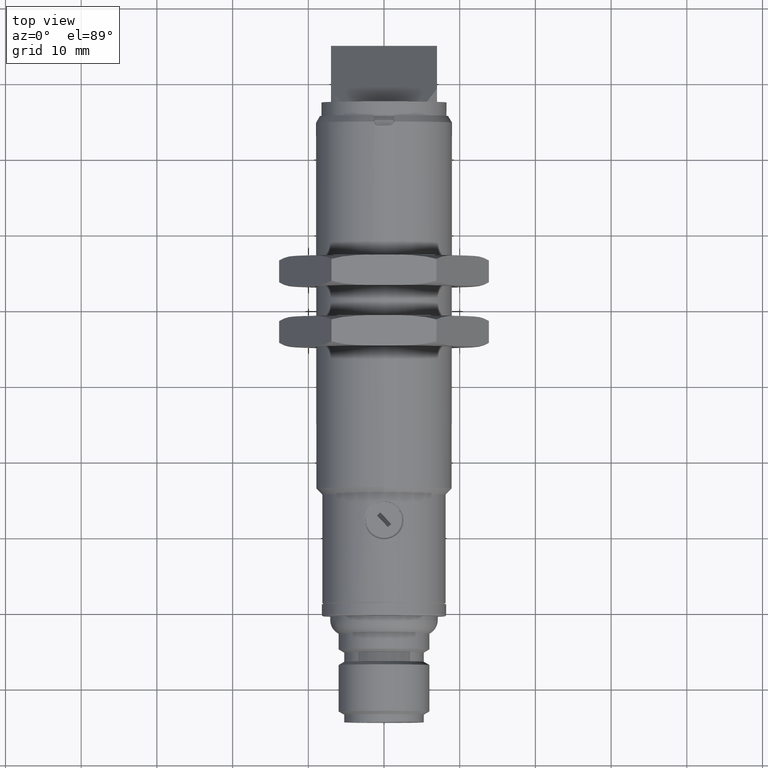
[diagram: clean part render]
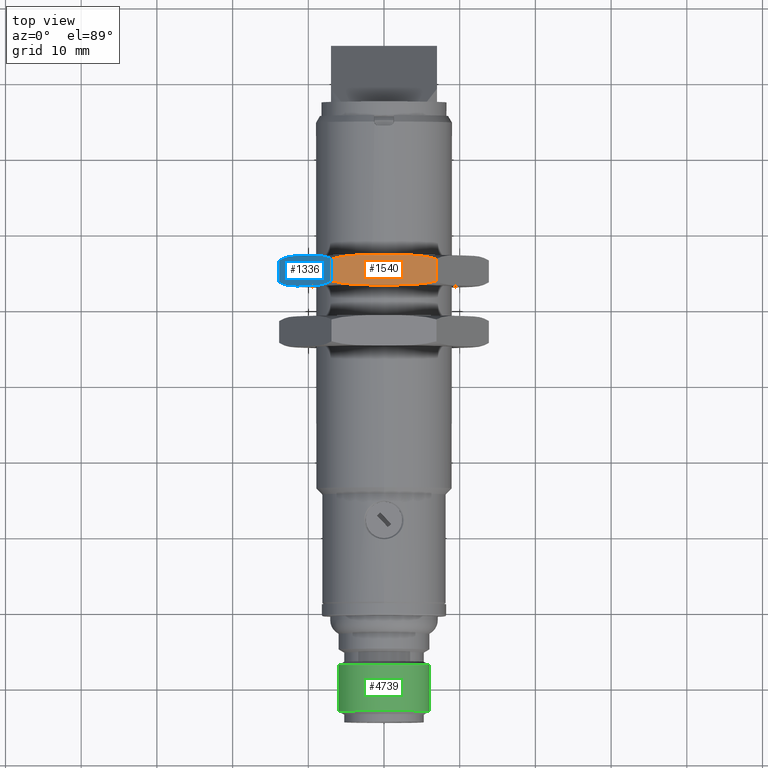
[diagram: same view with three faces highlighted in distinct colors, each labeled with its STEP entity id]
A machine part, top view with three faces highlighted in distinct colors.
Their STEP definitions:

[orange] entity #1540 — the highlighted planar face has unit normal (0, 0, -1).
#26 = CARTESIAN_POINT ( 'NONE',  ( -0.2091848011551339370, 0.5235346787460055662, 0.4724408906840904532 ) ) ;
#31 = VERTEX_POINT ( 'NONE', #1901 ) ;
#68 = B_SPLINE_CURVE_WITH_KNOTS ( 'NONE', 3,
 ( #1308, #2995, #4676, #3842, #895, #2580, #4257, #2167, #3427, #5122, #4642, #2571, #3394, #4218, #4247, #3805, #5112, #5062, #1300, #2959, #5085, #886, #856 ),
 .UNSPECIFIED., .F., .F.,
 ( 4, 2, 2, 1, 2, 2, 2, 2, 2, 2, 2, 4 ),
 ( 0.000000000000000000, 0.1250000000000014433, 0.1875000000000021649, 0.2187500000000023315, 0.2343750000000021927, 0.2500000000000020539, 0.3750000000000019984, 0.4375000000000016653, 0.4687500000000016098, 0.5000000000000015543, 0.7500000000000008882, 1.000000000000000000 ),
 .UNSPECIFIED. ) ;
#287 = ORIENTED_EDGE ( 'NONE', *, *, #2804, .F. ) ;
#372 = CARTESIAN_POINT ( 'NONE',  ( 0.1990362944284284896, 0.6665554601562885262, 0.4724396099491468548 ) ) ;
#383 = CARTESIAN_POINT ( 'NONE',  ( -0.1293281229919895636, 0.5169781697918028884, 0.4724387467221207171 ) ) ;
#399 = CARTESIAN_POINT ( 'NONE',  ( 0.2330192571565266046, 0.6617065964424819757, 0.4724408450086383104 ) ) ;
#424 = EDGE_CURVE ( 'NONE', #714, #1895, #4949, .T. ) ;
#426 = CARTESIAN_POINT ( 'NONE',  ( 0.1708411760996204898, 0.6694618231276583398, 0.4724378416148976023 ) ) ;
#470 = CARTESIAN_POINT ( 'NONE',  ( -0.1708411761039722310, 0.5192795187504218868, 0.4724378416150332716 ) ) ;
#496 = CARTESIAN_POINT ( 'NONE',  ( -0.2066529976302912963, 0.5231811942670836491, 0.4724406848995783004 ) ) ;
#570 = ORIENTED_EDGE ( 'NONE', *, *, #1596, .F. ) ;
#593 = EDGE_CURVE ( 'NONE', #4885, #2611, #4717, .T. ) ;
#594 = LINE ( 'NONE', #4853, #2495 ) ;
#621 = ORIENTED_EDGE ( 'NONE', *, *, #3126, .T. ) ;
#628 = CARTESIAN_POINT ( 'NONE',  ( 0.04645346502427662866, 0.6730862702828028787, 0.4724409448818893686 ) ) ;
#639 = CARTESIAN_POINT ( 'NONE',  ( -0.2727639067037606613, 0.6731108284191653635, 0.4724409448818898127 ) ) ;
#714 = VERTEX_POINT ( 'NONE', #3213 ) ;
#807 = VECTOR ( 'NONE', #1233, 39.37007874015748143 ) ;
#815 = CARTESIAN_POINT ( 'NONE',  ( 0.2727639067037606613, 0.6512148107232283989, 0.4724409448818898127 ) ) ;
#817 = CARTESIAN_POINT ( 'NONE',  ( 0.1632808797370268183, 0.5187803498524760082, 0.4724395993777079639 ) ) ;
#833 = EDGE_CURVE ( 'NONE', #1837, #4885, #68, .T. ) ;
#856 = CARTESIAN_POINT ( 'NONE',  ( -0.02567950825658082623, 0.6731108284191653635, 0.4724409448818898127 ) ) ;
#879 = CARTESIAN_POINT ( 'NONE',  ( -0.1241639488644155215, 0.5167967924526691847, 0.4724382398507110392 ) ) ;
#886 = CARTESIAN_POINT ( 'NONE',  ( -0.04646973941657321638, 0.6730862510438706536, 0.4724409448818895352 ) ) ;
#895 = CARTESIAN_POINT ( 'NONE',  ( -0.2330594514840700904, 0.6612425960756438403, 0.4724382843729626469 ) ) ;
#932 = CARTESIAN_POINT ( 'NONE',  ( -0.1990362944313719407, 0.5221858817217481796, 0.4724396099490421608 ) ) ;
#1016 = VERTEX_POINT ( 'NONE', #4942 ) ;
#1025 = CARTESIAN_POINT ( 'NONE',  ( 0.02567950825658082623, 0.5156305134585361660, 0.4724409448818898127 ) ) ;
#1042 = CARTESIAN_POINT ( 'NONE',  ( 0.02567950825658082623, 0.6731108284191653635, 0.4724409448818898127 ) ) ;
#1069 = VECTOR ( 'NONE', #4294, 39.37007874015748143 ) ;
#1120 = DIRECTION ( 'NONE',  ( 0.000000000000000000, -1.000000000000000000, 0.000000000000000000 ) ) ;
#1128 = CARTESIAN_POINT ( 'NONE',  ( 0.1554226949849122630, 0.5182610845015797052, 0.4724407071759577637 ) ) ;
#1154 = CARTESIAN_POINT ( 'NONE',  ( 0.1763008074031270911, 0.5197923830726198791, 0.4724378012827494810 ) ) ;
#1180 = CARTESIAN_POINT ( 'NONE',  ( 0.1604643549085116305, 0.6702096986703052206, 0.4724409003933649487 ) ) ;
#1197 = ORIENTED_EDGE ( 'NONE', *, *, #833, .F. ) ;
#1207 = CARTESIAN_POINT ( 'NONE',  ( 0.2066529976289322446, 0.6655601476107830816, 0.4724406848996517416 ) ) ;
#1232 = CARTESIAN_POINT ( 'NONE',  ( 0.2214053349024480422, 0.5254109070155068562, 0.4724402044284559121 ) ) ;
#1233 = DIRECTION ( 'NONE',  ( 0.000000000000000000, -1.000000000000000000, 0.000000000000000000 ) ) ;
#1261 = VECTOR ( 'NONE', #3165, 39.37007874015748143 ) ;
#1270 = CARTESIAN_POINT ( 'NONE',  ( -0.06709584475199302511, 0.5157034660448385210, 0.4724410302519692628 ) ) ;
#1300 = CARTESIAN_POINT ( 'NONE',  ( -0.1294572635618168044, 0.6719487739377050239, 0.4724408552733971867 ) ) ;
#1308 = CARTESIAN_POINT ( 'NONE',  ( -0.2727639067037606613, 0.6512148107232283989, 0.4724409448818898127 ) ) ;
#1348 = CARTESIAN_POINT ( 'NONE',  ( -0.2330192571588157180, 0.5270347454356897332, 0.4724408450090430422 ) ) ;
#1377 = FACE_OUTER_BOUND ( 'NONE', #5295, .T. ) ;
#1540 = ADVANCED_FACE ( 'NONE', ( #1377 ), #5256, .F. ) ;
#1560 = CARTESIAN_POINT ( 'NONE',  ( 0.09830553385879511885, 0.6726118710566963976, 0.4724409021968058453 ) ) ;
#1589 = CARTESIAN_POINT ( 'NONE',  ( 0.2134785542342753084, 0.5241628188742354366, 0.4724409509406384822 ) ) ;
#1596 = EDGE_CURVE ( 'NONE', #2491, #714, #4125, .T. ) ;
#1620 = CARTESIAN_POINT ( 'NONE',  ( 0.2727639067037606613, 0.6731108284191653635, 0.4724409448818898127 ) ) ;
#1761 = DIRECTION ( 'NONE',  ( 0.000000000000000000, -1.000000000000000000, 0.000000000000000000 ) ) ;
#1837 = VERTEX_POINT ( 'NONE', #5010 ) ;
#1895 = VERTEX_POINT ( 'NONE', #1025 ) ;
#1901 = CARTESIAN_POINT ( 'NONE',  ( -0.2727639067037602172, 0.5375265311544740188, 0.4724409448818898127 ) ) ;
#1951 = AXIS2_PLACEMENT_3D ( 'NONE', #639, #3857, #1761 ) ;
#1983 = CARTESIAN_POINT ( 'NONE',  ( 0.1918098235636890581, 0.5212642084282440580, 0.4724377470953523006 ) ) ;
#2067 = CARTESIAN_POINT ( 'NONE',  ( -0.2727639067037602172, 0.5375265311544740188, 0.4724409448818898127 ) ) ;
#2073 = ORIENTED_EDGE ( 'NONE', *, *, #3144, .T. ) ;
#2092 = CARTESIAN_POINT ( 'NONE',  ( -0.1447435290423597365, 0.5176518222579122863, 0.4724409671260375587 ) ) ;
#2109 = CARTESIAN_POINT ( 'NONE',  ( 0.1396552881079065334, 0.6713335666281557979, 0.4724401085877822370 ) ) ;
#2150 = CARTESIAN_POINT ( 'NONE',  ( -0.1862699493274133367, 0.5207359911166437039, 0.4724378574288715105 ) ) ;
#2167 = CARTESIAN_POINT ( 'NONE',  ( -0.2174746463094093807, 0.6639603983447495139, 0.4724406695293444369 ) ) ;
#2232 = CARTESIAN_POINT ( 'NONE',  ( -0.2727639067037606613, 0.6731108284191653635, 0.4724409448818898127 ) ) ;
#2387 = LINE ( 'NONE', #2715, #1261 ) ;
#2448 = CARTESIAN_POINT ( 'NONE',  ( 0.2727639067037609943, 0.5375265311544740188, 0.4724409448818898127 ) ) ;
#2491 = VERTEX_POINT ( 'NONE', #3129 ) ;
#2495 = VECTOR ( 'NONE', #1120, 39.37007874015748143 ) ;
#2499 = CARTESIAN_POINT ( 'NONE',  ( 0.1447435290438003064, 0.6710895196196895451, 0.4724409671261519117 ) ) ;
#2500 = CARTESIAN_POINT ( 'NONE',  ( 0.1606657604780550863, 0.5185998058386132037, 0.4724400286940346194 ) ) ;
#2508 = CARTESIAN_POINT ( 'NONE',  ( -0.02567950825656512004, 0.5156305134585361660, 0.4724409448818898127 ) ) ;
#2571 = CARTESIAN_POINT ( 'NONE',  ( -0.1918098235648533489, 0.6674771334494088437, 0.4724377470950617552 ) ) ;
#2580 = CARTESIAN_POINT ( 'NONE',  ( -0.2253044169200708324, 0.6626555114454859563, 0.4724395274876664885 ) ) ;
#2611 = VERTEX_POINT ( 'NONE', #3642 ) ;
#2614 = CARTESIAN_POINT ( 'NONE',  ( -0.2534592382013005074, 0.5313984304481850218, 0.4724409448818899238 ) ) ;
#2715 = CARTESIAN_POINT ( 'NONE',  ( -0.2727639067037606613, 0.5156305134585361660, 0.4724409448818898127 ) ) ;
#2804 = EDGE_CURVE ( 'NONE', #1016, #31, #4980, .T. ) ;
#2833 = CARTESIAN_POINT ( 'NONE',  ( 0.1293281229892412898, 0.6717631720859779110, 0.4724387467223103987 ) ) ;
#2836 = CARTESIAN_POINT ( 'NONE',  ( 0.2253044169186964041, 0.5260858304319044887, 0.4724395274874733652 ) ) ;
#2942 = CARTESIAN_POINT ( 'NONE',  ( 0.1086588139034602718, 0.6724085679327587162, 0.4724382443707590973 ) ) ;
#2959 = CARTESIAN_POINT ( 'NONE',  ( -0.1087806650652929086, 0.6724685124444426121, 0.4724410318274350207 ) ) ;
#2995 = CARTESIAN_POINT ( 'NONE',  ( -0.2631880547584677932, 0.6542545824272475441, 0.4724409448818904789 ) ) ;
#3036 = CARTESIAN_POINT ( 'NONE',  ( -0.1086588139064327413, 0.5163327739450063181, 0.4724382443706920398 ) ) ;
#3126 = EDGE_CURVE ( 'NONE', #1837, #31, #594, .T. ) ;
#3129 = CARTESIAN_POINT ( 'NONE',  ( 0.2727639067037606613, 0.6512148107232283989, 0.4724409448818898127 ) ) ;
#3144 = EDGE_CURVE ( 'NONE', #1016, #1895, #2387, .T. ) ;
#3165 = DIRECTION ( 'NONE',  ( 1.000000000000000000, 0.000000000000000000, 0.000000000000000000 ) ) ;
#3213 = CARTESIAN_POINT ( 'NONE',  ( 0.2727639067037609943, 0.5375265311544740188, 0.4724409448818898127 ) ) ;
#3248 = CARTESIAN_POINT ( 'NONE',  ( 0.2103806306954885685, 0.6650355907315015358, 0.4724409511239678339 ) ) ;
#3251 = CARTESIAN_POINT ( 'NONE',  ( 0.1087806650634618316, 0.5162728294332525891, 0.4724410318276749399 ) ) ;
#3302 = CARTESIAN_POINT ( 'NONE',  ( 0.2631880547570747964, 0.5344867594500121166, 0.4724409448818890911 ) ) ;
#3351 = CARTESIAN_POINT ( 'NONE',  ( 0.2020562668499976400, 0.5224717364740404379, 0.4724408964118929632 ) ) ;
#3394 = CARTESIAN_POINT ( 'NONE',  ( -0.1763008074042874129, 0.6689489588050401281, 0.4724378012824984596 ) ) ;
#3427 = CARTESIAN_POINT ( 'NONE',  ( -0.2148472301016472741, 0.6643706430222349191, 0.4724408876046519157 ) ) ;
#3642 = CARTESIAN_POINT ( 'NONE',  ( 0.02567950825658082623, 0.6731108284191653635, 0.4724409448818898127 ) ) ;
#3660 = CARTESIAN_POINT ( 'NONE',  ( 0.06711319420893993581, 0.5157033280821290422, 0.4724408579361032978 ) ) ;
#3699 = CARTESIAN_POINT ( 'NONE',  ( -0.02567950825658082623, 0.6731108284191653635, 0.4724409448818898127 ) ) ;
#3707 = CARTESIAN_POINT ( 'NONE',  ( 0.2533270605925583840, 0.5318800358098115799, 0.4724376343924296950 ) ) ;
#3758 = CARTESIAN_POINT ( 'NONE',  ( 0.1294572635654663850, 0.5167925679401594863, 0.4724408552731532152 ) ) ;
#3785 = ORIENTED_EDGE ( 'NONE', *, *, #4490, .F. ) ;
#3805 = CARTESIAN_POINT ( 'NONE',  ( -0.1606657604787049276, 0.6701415360390692300, 0.4724400286939169358 ) ) ;
#3828 = CARTESIAN_POINT ( 'NONE',  ( -0.2028510139652017208, 0.5226642419558210628, 0.4724402463340609537 ) ) ;
#3842 = CARTESIAN_POINT ( 'NONE',  ( -0.2381720422866618614, 0.6602165526766670123, 0.4724376553695797121 ) ) ;
#3857 = DIRECTION ( 'NONE',  ( 0.000000000000000000, 0.000000000000000000, -1.000000000000000000 ) ) ;
#4124 = CARTESIAN_POINT ( 'NONE',  ( 0.2148472301013165942, 0.5243706988553985537, 0.4724408876045951833 ) ) ;
#4125 = LINE ( 'NONE', #1620, #807 ) ;
#4176 = CARTESIAN_POINT ( 'NONE',  ( 0.1913899664302844417, 0.6674639582338915966, 0.4724384437686404148 ) ) ;
#4199 = CARTESIAN_POINT ( 'NONE',  ( 0.1241639488614239423, 0.6719445494251120587, 0.4724382398508781833 ) ) ;
#4210 = CARTESIAN_POINT ( 'NONE',  ( -0.1604643549113730083, 0.5185316432075970372, 0.4724409003935906015 ) ) ;
#4218 = CARTESIAN_POINT ( 'NONE',  ( -0.1711076652181058588, 0.6693829128923897143, 0.4724384113194877721 ) ) ;
#4240 = CARTESIAN_POINT ( 'NONE',  ( -0.09830553386075568945, 0.5161294708210357740, 0.4724409021968486999 ) ) ;
#4247 = CARTESIAN_POINT ( 'NONE',  ( -0.1632808797377978682, 0.6699609920252018735, 0.4724395993775633018 ) ) ;
#4257 = CARTESIAN_POINT ( 'NONE',  ( -0.2214053349034973972, 0.6633304348619657453, 0.4724402044286171720 ) ) ;
#4269 = CARTESIAN_POINT ( 'NONE',  ( -0.1913899664343196028, 0.5212773836442408104, 0.4724384437685641425 ) ) ;
#4294 = DIRECTION ( 'NONE',  ( 1.000000000000000000, 0.000000000000000000, 0.000000000000000000 ) ) ;
#4415 = ORIENTED_EDGE ( 'NONE', *, *, #593, .F. ) ;
#4490 = EDGE_CURVE ( 'NONE', #2611, #2491, #4803, .T. ) ;
#4516 = CARTESIAN_POINT ( 'NONE',  ( 0.2534592381989587695, 0.6573429114302616894, 0.4724409448818897017 ) ) ;
#4569 = CARTESIAN_POINT ( 'NONE',  ( 0.2381720422845877150, 0.5285247892005164871, 0.4724376553693647729 ) ) ;
#4599 = CARTESIAN_POINT ( 'NONE',  ( 0.06709584475595269104, 0.6730378758328037225, 0.4724410302520565819 ) ) ;
#4601 = CARTESIAN_POINT ( 'NONE',  ( 0.1711076652170437362, 0.5193584289852762881, 0.4724384113197033774 ) ) ;
#4609 = CARTESIAN_POINT ( 'NONE',  ( -0.2103806306953412419, 0.5237057511461707948, 0.4724409511239421877 ) ) ;
#4642 = CARTESIAN_POINT ( 'NONE',  ( -0.2020562668507766835, 0.6662696054036223448, 0.4724408964116642018 ) ) ;
#4676 = CARTESIAN_POINT ( 'NONE',  ( -0.2533270605946438270, 0.6568613060673103021, 0.4724376343925554278 ) ) ;
#4717 = LINE ( 'NONE', #2232, #1069 ) ;
#4803 = B_SPLINE_CURVE_WITH_KNOTS ( 'NONE', 3,
 ( #1042, #628, #4599, #1560, #2942, #4199, #2833, #2109, #2499, #1180, #426, #5356, #4176, #372, #4946, #1207, #5018, #3248, #399, #4516, #815 ),
 .UNSPECIFIED., .F., .F.,
 ( 4, 2, 2, 2, 2, 2, 2, 1, 2, 2, 4 ),
 ( 0.000000000000000000, 0.2500000000000021649, 0.3750000000000031086, 0.4375000000000034972, 0.5000000000000038858, 0.6250000000000045519, 0.6875000000000051070, 0.7187500000000054401, 0.7343750000000053291, 0.7500000000000052180, 1.000000000000000000 ),
 .UNSPECIFIED. ) ;
#4815 = ORIENTED_EDGE ( 'NONE', *, *, #424, .F. ) ;
#4853 = CARTESIAN_POINT ( 'NONE',  ( -0.2727639067037606613, 0.6731108284191653635, 0.4724409448818898127 ) ) ;
#4885 = VERTEX_POINT ( 'NONE', #3699 ) ;
#4942 = CARTESIAN_POINT ( 'NONE',  ( -0.02567950825656512004, 0.5156305134585361660, 0.4724409448818898127 ) ) ;
#4946 = CARTESIAN_POINT ( 'NONE',  ( 0.2028510139629442488, 0.6660770999221479194, 0.4724402463341659808 ) ) ;
#4949 = B_SPLINE_CURVE_WITH_KNOTS ( 'NONE', 3,
 ( #2448, #3302, #3707, #4569, #5384, #2836, #1232, #5434, #4124, #1589, #3351, #1983, #1154, #4601, #817, #2500, #1128, #4999, #3758, #3251, #3660, #5410, #5360 ),
 .UNSPECIFIED., .F., .F.,
 ( 4, 2, 2, 1, 2, 2, 2, 2, 2, 2, 2, 4 ),
 ( 0.000000000000000000, 0.1250000000000006661, 0.1875000000000009992, 0.2187500000000013600, 0.2343750000000017486, 0.2500000000000021094, 0.3750000000000026090, 0.4375000000000026645, 0.4687500000000024980, 0.5000000000000023315, 0.7500000000000012212, 1.000000000000000000 ),
 .UNSPECIFIED. ) ;
#4980 = B_SPLINE_CURVE_WITH_KNOTS ( 'NONE', 3,
 ( #2508, #5027, #1270, #4240, #3036, #879, #383, #5138, #2092, #4210, #470, #2150, #4269, #932, #3828, #496, #26, #4609, #1348, #2614, #2067 ),
 .UNSPECIFIED., .F., .F.,
 ( 4, 2, 2, 2, 2, 2, 2, 1, 2, 2, 4 ),
 ( 0.000000000000000000, 0.2499999999999995559, 0.3749999999999992228, 0.4374999999999989453, 0.4999999999999986677, 0.6249999999999981126, 0.6874999999999978906, 0.7187499999999978906, 0.7343749999999977796, 0.7499999999999977796, 1.000000000000000000 ),
 .UNSPECIFIED. ) ;
#4999 = CARTESIAN_POINT ( 'NONE',  ( 0.1527479835562315924, 0.5181002813259252271, 0.4724409560829803678 ) ) ;
#5010 = CARTESIAN_POINT ( 'NONE',  ( -0.2727639067037606613, 0.6512148107232283989, 0.4724409448818898127 ) ) ;
#5018 = CARTESIAN_POINT ( 'NONE',  ( 0.2091848011544210073, 0.6652066631317851142, 0.4724408906841339739 ) ) ;
#5027 = CARTESIAN_POINT ( 'NONE',  ( -0.04645346502491753959, 0.5156550715949003161, 0.4724409448818888135 ) ) ;
#5062 = CARTESIAN_POINT ( 'NONE',  ( -0.1527479835566878108, 0.6706410605517569845, 0.4724409560829506693 ) ) ;
#5085 = CARTESIAN_POINT ( 'NONE',  ( -0.06711319420710755435, 0.6730380137955810360, 0.4724408579363445493 ) ) ;
#5112 = CARTESIAN_POINT ( 'NONE',  ( -0.1554226949852725304, 0.6704802573761121653, 0.4724407071758972010 ) ) ;
#5122 = CARTESIAN_POINT ( 'NONE',  ( -0.2134785542341781361, 0.6645785230034723101, 0.4724409509406676255 ) ) ;
#5138 = CARTESIAN_POINT ( 'NONE',  ( -0.1396552881096602139, 0.5174077752496042404, 0.4724401085876197559 ) ) ;
#5256 = PLANE ( 'NONE',  #1951 ) ;
#5295 = EDGE_LOOP ( 'NONE', ( #287, #2073, #4815, #570, #3785, #4415, #1197, #621 ) ) ;
#5356 = CARTESIAN_POINT ( 'NONE',  ( 0.1862699493230244030, 0.6680053507615015818, 0.4724378574288921606 ) ) ;
#5360 = CARTESIAN_POINT ( 'NONE',  ( 0.02567950825658082623, 0.5156305134585361660, 0.4724409448818898127 ) ) ;
#5384 = CARTESIAN_POINT ( 'NONE',  ( 0.2330594514821738017, 0.5274987458016043851, 0.4724382843727339409 ) ) ;
#5410 = CARTESIAN_POINT ( 'NONE',  ( 0.04646973941839230293, 0.5156550908338339845, 0.4724409448818893131 ) ) ;
#5434 = CARTESIAN_POINT ( 'NONE',  ( 0.2174746463087789683, 0.5247809435328183447, 0.4724406695292417968 ) ) ;

[blue] entity #1336 — the highlighted planar face has unit normal (0.866, 0, -0.5).
#31 = VERTEX_POINT ( 'NONE', #1901 ) ;
#37 = CARTESIAN_POINT ( 'NONE',  ( -0.3096370786841898259, 0.6665580516034425029, 0.4085720675468353380 ) ) ;
#116 = CARTESIAN_POINT ( 'NONE',  ( -0.5217052813999742966, 0.6626877943157833961, 0.04125895541634213431 ) ) ;
#122 = CARTESIAN_POINT ( 'NONE',  ( -0.3548222021616031507, 0.6724089294004050865, 0.3303064103918076366 ) ) ;
#143 = CARTESIAN_POINT ( 'NONE',  ( -0.5255969649732042948, 0.6612724964438663200, 0.03451583709007280398 ) ) ;
#193 = VECTOR ( 'NONE', #1091, 39.37007874015748143 ) ;
#198 = CARTESIAN_POINT ( 'NONE',  ( -0.5407219455680117859, 0.6542659734093807522, 0.008324007272490151557 ) ) ;
#242 = CARTESIAN_POINT ( 'NONE',  ( -0.3443796072874627523, 0.5167950920939237136, 0.3483987354618849897 ) ) ;
#300 = CARTESIAN_POINT ( 'NONE',  ( -0.3963061059273536024, 0.5156305134585361660, 0.2584595789478303374 ) ) ;
#349 = CARTESIAN_POINT ( 'NONE',  ( -0.5455278134075204344, 0.6731108284191653635, -1.365923996832131856E-16 ) ) ;
#480 = CARTESIAN_POINT ( 'NONE',  ( -0.3470707467228983933, 0.6719451610110415141, 0.3437323159971480413 ) ) ;
#531 = CARTESIAN_POINT ( 'NONE',  ( -0.3963061059273536024, 0.6731108284191653635, 0.2584595789478303374 ) ) ;
#581 = CARTESIAN_POINT ( 'NONE',  ( -0.4972662276605052667, 0.6689535232972547707, 0.08358535981722507724 ) ) ;
#594 = LINE ( 'NONE', #4853, #2495 ) ;
#608 = CARTESIAN_POINT ( 'NONE',  ( -0.4635796368561047043, 0.6724667977921361395, 0.1419385782502955162 ) ) ;
#660 = CARTESIAN_POINT ( 'NONE',  ( -0.2965839442228578871, 0.5260535475626921809, 0.4311805492759078207 ) ) ;
#681 = CARTESIAN_POINT ( 'NONE',  ( -0.5137278345112473721, 0.5235317306861292375, 0.05507907071577441277 ) ) ;
#686 = CARTESIAN_POINT ( 'NONE',  ( -0.3005153188756766180, 0.5247469591651097165, 0.4243735286904487536 ) ) ;
#691 = CARTESIAN_POINT ( 'NONE',  ( -0.5455278134075204344, 0.5156305134585361660, -1.365923996832131856E-16 ) ) ;
#834 = CARTESIAN_POINT ( 'NONE',  ( -0.3160188940530542223, 0.6680075287372810866, 0.3975149339004468430 ) ) ;
#858 = DIRECTION ( 'NONE',  ( 0.8660254037844388186, 0.000000000000000000, -0.4999999999999998890 ) ) ;
#889 = CARTESIAN_POINT ( 'NONE',  ( -0.3859213302319696726, 0.6730862754906624668, 0.2764465380774416281 ) ) ;
#919 = CARTESIAN_POINT ( 'NONE',  ( -0.2727639067037606613, 0.6512148107232283989, 0.4724409448818898127 ) ) ;
#943 = EDGE_CURVE ( 'NONE', #5464, #1752, #2892, .T. ) ;
#1073 = AXIS2_PLACEMENT_3D ( 'NONE', #3015, #858, #2539 ) ;
#1091 = DIRECTION ( 'NONE',  ( 0.000000000000000000, -1.000000000000000000, 0.000000000000000000 ) ) ;
#1095 = CARTESIAN_POINT ( 'NONE',  ( -0.4323703898755512087, 0.5156550663870312912, 0.1959944068109599757 ) ) ;
#1115 = EDGE_CURVE ( 'NONE', #2747, #5147, #1118, .T. ) ;
#1118 = LINE ( 'NONE', #3292, #193 ) ;
#1120 = DIRECTION ( 'NONE',  ( 0.000000000000000000, -1.000000000000000000, 0.000000000000000000 ) ) ;
#1121 = CARTESIAN_POINT ( 'NONE',  ( -0.5086523291161288984, 0.5221832902746886829, 0.06386754231760066736 ) ) ;
#1192 = CARTESIAN_POINT ( 'NONE',  ( -0.5455278134075196572, 0.6512148107232283989, -6.829619984160648185E-16 ) ) ;
#1324 = ORIENTED_EDGE ( 'NONE', *, *, #4359, .F. ) ;
#1327 = FACE_OUTER_BOUND ( 'NONE', #3522, .T. ) ;
#1336 = ADVANCED_FACE ( 'NONE', ( #1327 ), #4644, .F. ) ;
#1357 = CARTESIAN_POINT ( 'NONE',  ( -0.3444894680688954658, 0.6717638818140113655, 0.3482042348678233701 ) ) ;
#1374 = CARTESIAN_POINT ( 'NONE',  ( -0.5455278134075196572, 0.6512148107232283989, -6.829619984160648185E-16 ) ) ;
#1463 = CARTESIAN_POINT ( 'NONE',  ( -0.4894936963479902814, 0.6701518002401323226, 0.09705207767893148096 ) ) ;
#1481 = CARTESIAN_POINT ( 'NONE',  ( -0.2901232254555991541, 0.5284970168495486398, 0.4423670407018248651 ) ) ;
#1507 = CARTESIAN_POINT ( 'NONE',  ( -0.3236039992919398367, 0.5193563441234335665, 0.3843783578982883919 ) ) ;
#1508 = VECTOR ( 'NONE', #5004, 39.37007874015748854 ) ;
#1512 = LINE ( 'NONE', #691, #4616 ) ;
#1537 = CARTESIAN_POINT ( 'NONE',  ( -0.2985417752823006921, 0.5253776352668207972, 0.4277908613558193407 ) ) ;
#1631 = ORIENTED_EDGE ( 'NONE', *, *, #943, .F. ) ;
#1697 = B_SPLINE_CURVE_WITH_KNOTS ( 'NONE', 3,
 ( #3596, #1095, #5293, #2304, #3953, #4433, #1857, #3106, #3140, #3624, #1827, #3545, #3512, #1121, #2251, #2777, #681, #4035, #2745, #1887, #4829 ),
 .UNSPECIFIED., .F., .F.,
 ( 4, 2, 2, 2, 2, 2, 2, 1, 2, 2, 4 ),
 ( 0.000000000000000000, 0.2499999999999995004, 0.3749999999999992228, 0.4374999999999993339, 0.4999999999999994449, 0.6249999999999995559, 0.6874999999999994449, 0.7187499999999991118, 0.7343749999999992228, 0.7499999999999992228, 1.000000000000000000 ),
 .UNSPECIFIED. ) ;
#1731 = VERTEX_POINT ( 'NONE', #2382 ) ;
#1752 = VERTEX_POINT ( 'NONE', #2018 ) ;
#1756 = CARTESIAN_POINT ( 'NONE',  ( -0.4868542953552247865, 0.6704907846661732895, 0.1016255586729245125 ) ) ;
#1763 = CARTESIAN_POINT ( 'NONE',  ( -0.2824193981693968736, 0.6573449158905467771, 0.4557171430913576904 ) ) ;
#1827 = CARTESIAN_POINT ( 'NONE',  ( -0.4945529063528542602, 0.5192777926268145050, 0.08828492214809888217 ) ) ;
#1837 = VERTEX_POINT ( 'NONE', #5010 ) ;
#1846 = CARTESIAN_POINT ( 'NONE',  ( -0.4219856141839275487, 0.5156305134585361660, 0.2139813659340590590 ) ) ;
#1857 = CARTESIAN_POINT ( 'NONE',  ( -0.4737984471341302184, 0.5169774600635613782, 0.1242345132508626410 ) ) ;
#1871 = B_SPLINE_CURVE_WITH_KNOTS ( 'NONE', 3,
 ( #531, #889, #4252, #3888, #122, #480, #1357, #2541, #2212, #2934, #2187, #834, #3450, #37, #4619, #5065, #2161, #3371, #3838, #1763, #919 ),
 .UNSPECIFIED., .F., .F.,
 ( 4, 2, 2, 2, 2, 2, 2, 1, 2, 2, 4 ),
 ( 0.000000000000000000, 0.2500000000000015543, 0.3750000000000023315, 0.4375000000000023315, 0.5000000000000023315, 0.6250000000000027756, 0.6875000000000031086, 0.7187500000000029976, 0.7343750000000028866, 0.7500000000000027756, 1.000000000000000000 ),
 .UNSPECIFIED. ) ;
#1887 = CARTESIAN_POINT ( 'NONE',  ( -0.5358723219427530271, 0.5313964259877085317, 0.01672380178902280190 ) ) ;
#1893 = B_SPLINE_CURVE_WITH_KNOTS ( 'NONE', 3,
 ( #2781, #5328, #4466, #1481, #4385, #660, #1537, #686, #3656, #2309, #3576, #3170, #2720, #1507, #2338, #4015, #242, #4860, #4919, #3602, #300 ),
 .UNSPECIFIED., .F., .F.,
 ( 4, 2, 2, 1, 2, 2, 2, 2, 2, 2, 4 ),
 ( 0.000000000000000000, 0.1250000000000024702, 0.1875000000000039690, 0.2187500000000046629, 0.2343750000000051903, 0.2500000000000057176, 0.3750000000000051625, 0.4375000000000047740, 0.5000000000000043299, 0.7500000000000021094, 1.000000000000000000 ),
 .UNSPECIFIED. ) ;
#1901 = CARTESIAN_POINT ( 'NONE',  ( -0.2727639067037602172, 0.5375265311544740188, 0.4724409448818898127 ) ) ;
#1935 = EDGE_CURVE ( 'NONE', #2747, #5464, #4155, .T. ) ;
#2018 = CARTESIAN_POINT ( 'NONE',  ( -0.3963061059273536024, 0.6731108284191653635, 0.2584595789478303374 ) ) ;
#2161 = CARTESIAN_POINT ( 'NONE',  ( -0.3045637917127815841, 0.6652096111916869781, 0.4173618199592892819 ) ) ;
#2187 = CARTESIAN_POINT ( 'NONE',  ( -0.3237334385301734452, 0.6694635492513728581, 0.3841529193382591800 ) ) ;
#2206 = CARTESIAN_POINT ( 'NONE',  ( -0.5157645197187091801, 0.6646147806824485027, 0.05155154872455906118 ) ) ;
#2212 = CARTESIAN_POINT ( 'NONE',  ( -0.3367851964168991352, 0.6710906414288314581, 0.3615528627921695826 ) ) ;
#2251 = CARTESIAN_POINT ( 'NONE',  ( -0.5105602914995439612, 0.5226615203261064657, 0.06056412736438728656 ) ) ;
#2304 = CARTESIAN_POINT ( 'NONE',  ( -0.4582912566616311745, 0.5161292174222931184, 0.1510980632685117453 ) ) ;
#2309 = CARTESIAN_POINT ( 'NONE',  ( -0.3025272106594834032, 0.5241265611952270476, 0.4208894020845446171 ) ) ;
#2338 = CARTESIAN_POINT ( 'NONE',  ( -0.3287964129326554352, 0.5185895416376815614, 0.3753879371921542418 ) ) ;
#2382 = CARTESIAN_POINT ( 'NONE',  ( -0.3963061059273536024, 0.5156305134585361660, 0.2584595789478303374 ) ) ;
#2404 = EDGE_CURVE ( 'NONE', #1752, #1837, #1871, .T. ) ;
#2495 = VECTOR ( 'NONE', #1120, 39.37007874015748143 ) ;
#2530 = VERTEX_POINT ( 'NONE', #1846 ) ;
#2539 = DIRECTION ( 'NONE',  ( 0.000000000000000000, -1.000000000000000000, 0.000000000000000000 ) ) ;
#2541 = CARTESIAN_POINT ( 'NONE',  ( -0.3393277999929644184, 0.6713345094999950691, 0.3571472282221629380 ) ) ;
#2597 = CARTESIAN_POINT ( 'NONE',  ( -0.5100815675536122251, 0.6662921289399731384, 0.06139460391700780895 ) ) ;
#2720 = CARTESIAN_POINT ( 'NONE',  ( -0.3210201588139677265, 0.5197878185806776852, 0.3888525056926672718 ) ) ;
#2745 = CARTESIAN_POINT ( 'NONE',  ( -0.5256487635722760787, 0.5270319101051571531, 0.03443132460232445347 ) ) ;
#2747 = VERTEX_POINT ( 'NONE', #1192 ) ;
#2777 = CARTESIAN_POINT ( 'NONE',  ( -0.5124617175718700901, 0.5231783374395125863, 0.05727163798501942737 ) ) ;
#2781 = CARTESIAN_POINT ( 'NONE',  ( -0.2727639067037602172, 0.5375265311544740188, 0.4724409448818898127 ) ) ;
#2892 = LINE ( 'NONE', #349, #1508 ) ;
#2934 = CARTESIAN_POINT ( 'NONE',  ( -0.3289245960565046478, 0.6702111609612595444, 0.3751676886157970792 ) ) ;
#3015 = CARTESIAN_POINT ( 'NONE',  ( -0.5455278134075204344, 0.6731108284191653635, -1.365923996832131856E-16 ) ) ;
#3039 = CARTESIAN_POINT ( 'NONE',  ( -0.5164571854048070065, 0.6644050440810775893, 0.05035168773764905903 ) ) ;
#3063 = CARTESIAN_POINT ( 'NONE',  ( -0.5281627077694903694, 0.6602443250294401933, 0.03007056312570858744 ) ) ;
#3106 = CARTESIAN_POINT ( 'NONE',  ( -0.4789624725273387562, 0.5174068323776122025, 0.1152928808937190852 ) ) ;
#3126 = EDGE_CURVE ( 'NONE', #1837, #31, #594, .T. ) ;
#3140 = CARTESIAN_POINT ( 'NONE',  ( -0.4815065621964377818, 0.5176507004487423957, 0.1108881043208840983 ) ) ;
#3170 = CARTESIAN_POINT ( 'NONE',  ( -0.3133049372929501142, 0.5212503497670560870, 0.4022155552013713664 ) ) ;
#3204 = DIRECTION ( 'NONE',  ( 0.4999999999999998335, 0.000000000000000000, 0.8660254037844385966 ) ) ;
#3244 = ORIENTED_EDGE ( 'NONE', *, *, #1935, .F. ) ;
#3292 = CARTESIAN_POINT ( 'NONE',  ( -0.5455278134075204344, 0.6731108284191653635, -1.365923996832131856E-16 ) ) ;
#3371 = CARTESIAN_POINT ( 'NONE',  ( -0.3039661227260722076, 0.6650386445174488736, 0.4183971339049497584 ) ) ;
#3387 = ORIENTED_EDGE ( 'NONE', *, *, #4839, .F. ) ;
#3450 = CARTESIAN_POINT ( 'NONE',  ( -0.3134593319747598916, 0.6674662961353430291, 0.4019493981812020111 ) ) ;
#3512 = CARTESIAN_POINT ( 'NONE',  ( -0.5048280558506268445, 0.5212750457429113915, 0.07048904544864552368 ) ) ;
#3522 = EDGE_LOOP ( 'NONE', ( #3387, #4953, #1324, #3797, #4393, #1631, #3244, #5399 ) ) ;
#3526 = CARTESIAN_POINT ( 'NONE',  ( -0.5357696420918367508, 0.6568807823858968664, 0.01689492482226625028 ) ) ;
#3545 = CARTESIAN_POINT ( 'NONE',  ( -0.5022674781707459069, 0.5207338131409894322, 0.07492292337105975475 ) ) ;
#3559 = CARTESIAN_POINT ( 'NONE',  ( -0.5197486410804691426, 0.6633637066114509429, 0.04464933080952376843 ) ) ;
#3576 = CARTESIAN_POINT ( 'NONE',  ( -0.3082100704223706966, 0.5224492129379437744, 0.4110462935471786983 ) ) ;
#3596 = CARTESIAN_POINT ( 'NONE',  ( -0.4219856141839275487, 0.5156305134585361660, 0.2139813659340590590 ) ) ;
#3602 = CARTESIAN_POINT ( 'NONE',  ( -0.3859001054570096456, 0.5156551165691911631, 0.2764833004660501303 ) ) ;
#3624 = CARTESIAN_POINT ( 'NONE',  ( -0.4893670470506606418, 0.5185301809166996678, 0.09727321180376641285 ) ) ;
#3656 = CARTESIAN_POINT ( 'NONE',  ( -0.3018344334063383649, 0.5243362977967959138, 0.4220891986595284306 ) ) ;
#3797 = ORIENTED_EDGE ( 'NONE', *, *, #3126, .F. ) ;
#3838 = CARTESIAN_POINT ( 'NONE',  ( -0.2926427835782905995, 0.6617094317728946518, 0.4380095204186842395 ) ) ;
#3881 = CARTESIAN_POINT ( 'NONE',  ( -0.5177759159764102614, 0.6639943827129265452, 0.04806713602872181995 ) ) ;
#3884 = EDGE_CURVE ( 'NONE', #2530, #1731, #1512, .T. ) ;
#3888 = CARTESIAN_POINT ( 'NONE',  ( -0.3600003895839283818, 0.6726121244553598943, 0.3213428389680870190 ) ) ;
#3938 = CARTESIAN_POINT ( 'NONE',  ( -0.4323916146502744251, 0.6730862253085205804, 0.1959576444227617287 ) ) ;
#3953 = CARTESIAN_POINT ( 'NONE',  ( -0.4634648435116298093, 0.5163324124771939694, 0.1421318357037178737 ) ) ;
#4015 = CARTESIAN_POINT ( 'NONE',  ( -0.3314374631627010626, 0.5182505572114410874, 0.3708154083815884960 ) ) ;
#4035 = CARTESIAN_POINT ( 'NONE',  ( -0.5143256081952519709, 0.5237026973602317836, 0.05404381721824601248 ) ) ;
#4155 = B_SPLINE_CURVE_WITH_KNOTS ( 'NONE', 3,
 ( #1374, #198, #3526, #3063, #143, #116, #3559, #3881, #3039, #2206, #2597, #4367, #581, #4392, #1463, #1756, #4723, #608, #5254, #3938, #5226 ),
 .UNSPECIFIED., .F., .F.,
 ( 4, 2, 2, 1, 2, 2, 2, 2, 2, 2, 4 ),
 ( 0.000000000000000000, 0.1250000000000000555, 0.1875000000000000833, 0.2187500000000001110, 0.2343749999999999167, 0.2499999999999997224, 0.3749999999999993894, 0.4374999999999993339, 0.4999999999999993339, 0.7499999999999996669, 1.000000000000000000 ),
 .UNSPECIFIED. ) ;
#4225 = CARTESIAN_POINT ( 'NONE',  ( -0.5455278134075204344, 0.5375265311544740188, -1.365923996832131856E-16 ) ) ;
#4252 = CARTESIAN_POINT ( 'NONE',  ( -0.3756030433021983472, 0.6730379067072163046, 0.2943185058703569057 ) ) ;
#4359 = EDGE_CURVE ( 'NONE', #31, #1731, #1893, .T. ) ;
#4367 = CARTESIAN_POINT ( 'NONE',  ( -0.5049813572466739231, 0.6674909921109134503, 0.07022225722993499786 ) ) ;
#4385 = CARTESIAN_POINT ( 'NONE',  ( -0.2926900742376277731, 0.5274688454349614197, 0.4379224052781166554 ) ) ;
#4392 = CARTESIAN_POINT ( 'NONE',  ( -0.4946834222493637356, 0.6693849977544668040, 0.08806010520732115987 ) ) ;
#4393 = ORIENTED_EDGE ( 'NONE', *, *, #2404, .F. ) ;
#4433 = CARTESIAN_POINT ( 'NONE',  ( -0.4712162911153446876, 0.5167961808665306744, 0.1287059255748770337 ) ) ;
#4466 = CARTESIAN_POINT ( 'NONE',  ( -0.2825162551347085715, 0.5318605594932441782, 0.4555426582215315601 ) ) ;
#4616 = VECTOR ( 'NONE', #3204, 39.37007874015748854 ) ;
#4619 = CARTESIAN_POINT ( 'NONE',  ( -0.3077302186067800704, 0.6660798215519380117, 0.4118761189176693982 ) ) ;
#4644 = PLANE ( 'NONE',  #1073 ) ;
#4723 = CARTESIAN_POINT ( 'NONE',  ( -0.4739119591972293932, 0.6719462497841317550, 0.1240421207295130668 ) ) ;
#4829 = CARTESIAN_POINT ( 'NONE',  ( -0.5455278134075204344, 0.5375265311544740188, -1.365923996832131856E-16 ) ) ;
#4839 = EDGE_CURVE ( 'NONE', #2530, #5147, #1697, .T. ) ;
#4853 = CARTESIAN_POINT ( 'NONE',  ( -0.2727639067037606613, 0.6731108284191653635, 0.4724409448818898127 ) ) ;
#4860 = CARTESIAN_POINT ( 'NONE',  ( -0.3547122329747985359, 0.5162745440855339707, 0.3305024530629582236 ) ) ;
#4919 = CARTESIAN_POINT ( 'NONE',  ( -0.3755676575768769898, 0.5157033891081880261, 0.2943794522832595684 ) ) ;
#4953 = ORIENTED_EDGE ( 'NONE', *, *, #3884, .T. ) ;
#5004 = DIRECTION ( 'NONE',  ( 0.4999999999999998335, 0.000000000000000000, 0.8660254037844385966 ) ) ;
#5010 = CARTESIAN_POINT ( 'NONE',  ( -0.2727639067037606613, 0.6512148107232283989, 0.4724409448818898127 ) ) ;
#5065 = CARTESIAN_POINT ( 'NONE',  ( -0.3058295521981687082, 0.6655630044384015509, 0.4151690468903381781 ) ) ;
#5147 = VERTEX_POINT ( 'NONE', #4225 ) ;
#5184 = CARTESIAN_POINT ( 'NONE',  ( -0.4219856141839275487, 0.6731108284191653635, 0.2139813659340590590 ) ) ;
#5226 = CARTESIAN_POINT ( 'NONE',  ( -0.4219856141839275487, 0.6731108284191653635, 0.2139813659340590590 ) ) ;
#5254 = CARTESIAN_POINT ( 'NONE',  ( -0.4427239128147846259, 0.6730379527695465880, 0.1780614061672597948 ) ) ;
#5293 = CARTESIAN_POINT ( 'NONE',  ( -0.4426888245405217748, 0.5157034351705848119, 0.1781225243021161142 ) ) ;
#5328 = CARTESIAN_POINT ( 'NONE',  ( -0.2775697745415386386, 0.5344753684694200091, 0.4641169376123948642 ) ) ;
#5399 = ORIENTED_EDGE ( 'NONE', *, *, #1115, .T. ) ;
#5464 = VERTEX_POINT ( 'NONE', #5184 ) ;

[green] entity #4739 — the highlighted cylindrical surface (bore or boss wall) has radius 6 mm, axis along (0, -1, 0).
#184 = CARTESIAN_POINT ( 'NONE',  ( 0.000000000000000000, -1.137125392053275563, 0.000000000000000000 ) ) ;
#190 = VERTEX_POINT ( 'NONE', #1948 ) ;
#200 = CARTESIAN_POINT ( 'NONE',  ( 0.000000000000000000, -1.694880797490588620, 0.000000000000000000 ) ) ;
#216 = EDGE_LOOP ( 'NONE', ( #678 ) ) ;
#406 = EDGE_CURVE ( 'NONE', #1018, #1018, #5472, .T. ) ;
#444 = AXIS2_PLACEMENT_3D ( 'NONE', #3733, #2006, #3680 ) ;
#678 = ORIENTED_EDGE ( 'NONE', *, *, #406, .T. ) ;
#925 = EDGE_LOOP ( 'NONE', ( #2591 ) ) ;
#1018 = VERTEX_POINT ( 'NONE', #2697 ) ;
#1531 = FACE_OUTER_BOUND ( 'NONE', #216, .T. ) ;
#1534 = EDGE_CURVE ( 'NONE', #190, #190, #4874, .T. ) ;
#1746 = AXIS2_PLACEMENT_3D ( 'NONE', #184, #3925, #2692 ) ;
#1875 = DIRECTION ( 'NONE',  ( 0.000000000000000000, 1.000000000000000000, 0.000000000000000000 ) ) ;
#1948 = CARTESIAN_POINT ( 'NONE',  ( -0.2362204724409449064, -1.694880797490588620, 4.907315196850394102E-09 ) ) ;
#2006 = DIRECTION ( 'NONE',  ( 0.000000000000000000, -1.000000000000000000, 0.000000000000000000 ) ) ;
#2334 = FACE_OUTER_BOUND ( 'NONE', #925, .T. ) ;
#2591 = ORIENTED_EDGE ( 'NONE', *, *, #1534, .T. ) ;
#2692 = DIRECTION ( 'NONE',  ( -0.9999999999999997780, 0.000000000000000000, 2.077430099999999464E-08 ) ) ;
#2697 = CARTESIAN_POINT ( 'NONE',  ( 0.2362204724409449064, -1.453385734647456795, -4.907315196850394102E-09 ) ) ;
#3273 = AXIS2_PLACEMENT_3D ( 'NONE', #200, #1875, #3561 ) ;
#3561 = DIRECTION ( 'NONE',  ( -0.9999999999999997780, 0.000000000000000000, 2.077430099999999464E-08 ) ) ;
#3680 = DIRECTION ( 'NONE',  ( 0.9999999999999997780, 0.000000000000000000, -2.077430099999999464E-08 ) ) ;
#3733 = CARTESIAN_POINT ( 'NONE',  ( 0.000000000000000000, -1.453385734647456795, 0.000000000000000000 ) ) ;
#3925 = DIRECTION ( 'NONE',  ( 0.000000000000000000, -1.000000000000000000, 0.000000000000000000 ) ) ;
#4739 = ADVANCED_FACE ( 'NONE', ( #1531, #2334 ), #5322, .T. ) ;
#4874 = CIRCLE ( 'NONE', #3273, 0.2362204724409449619 ) ;
#5322 = CYLINDRICAL_SURFACE ( 'NONE', #1746, 0.2362204724409449619 ) ;
#5472 = CIRCLE ( 'NONE', #444, 0.2362204724409449619 ) ;